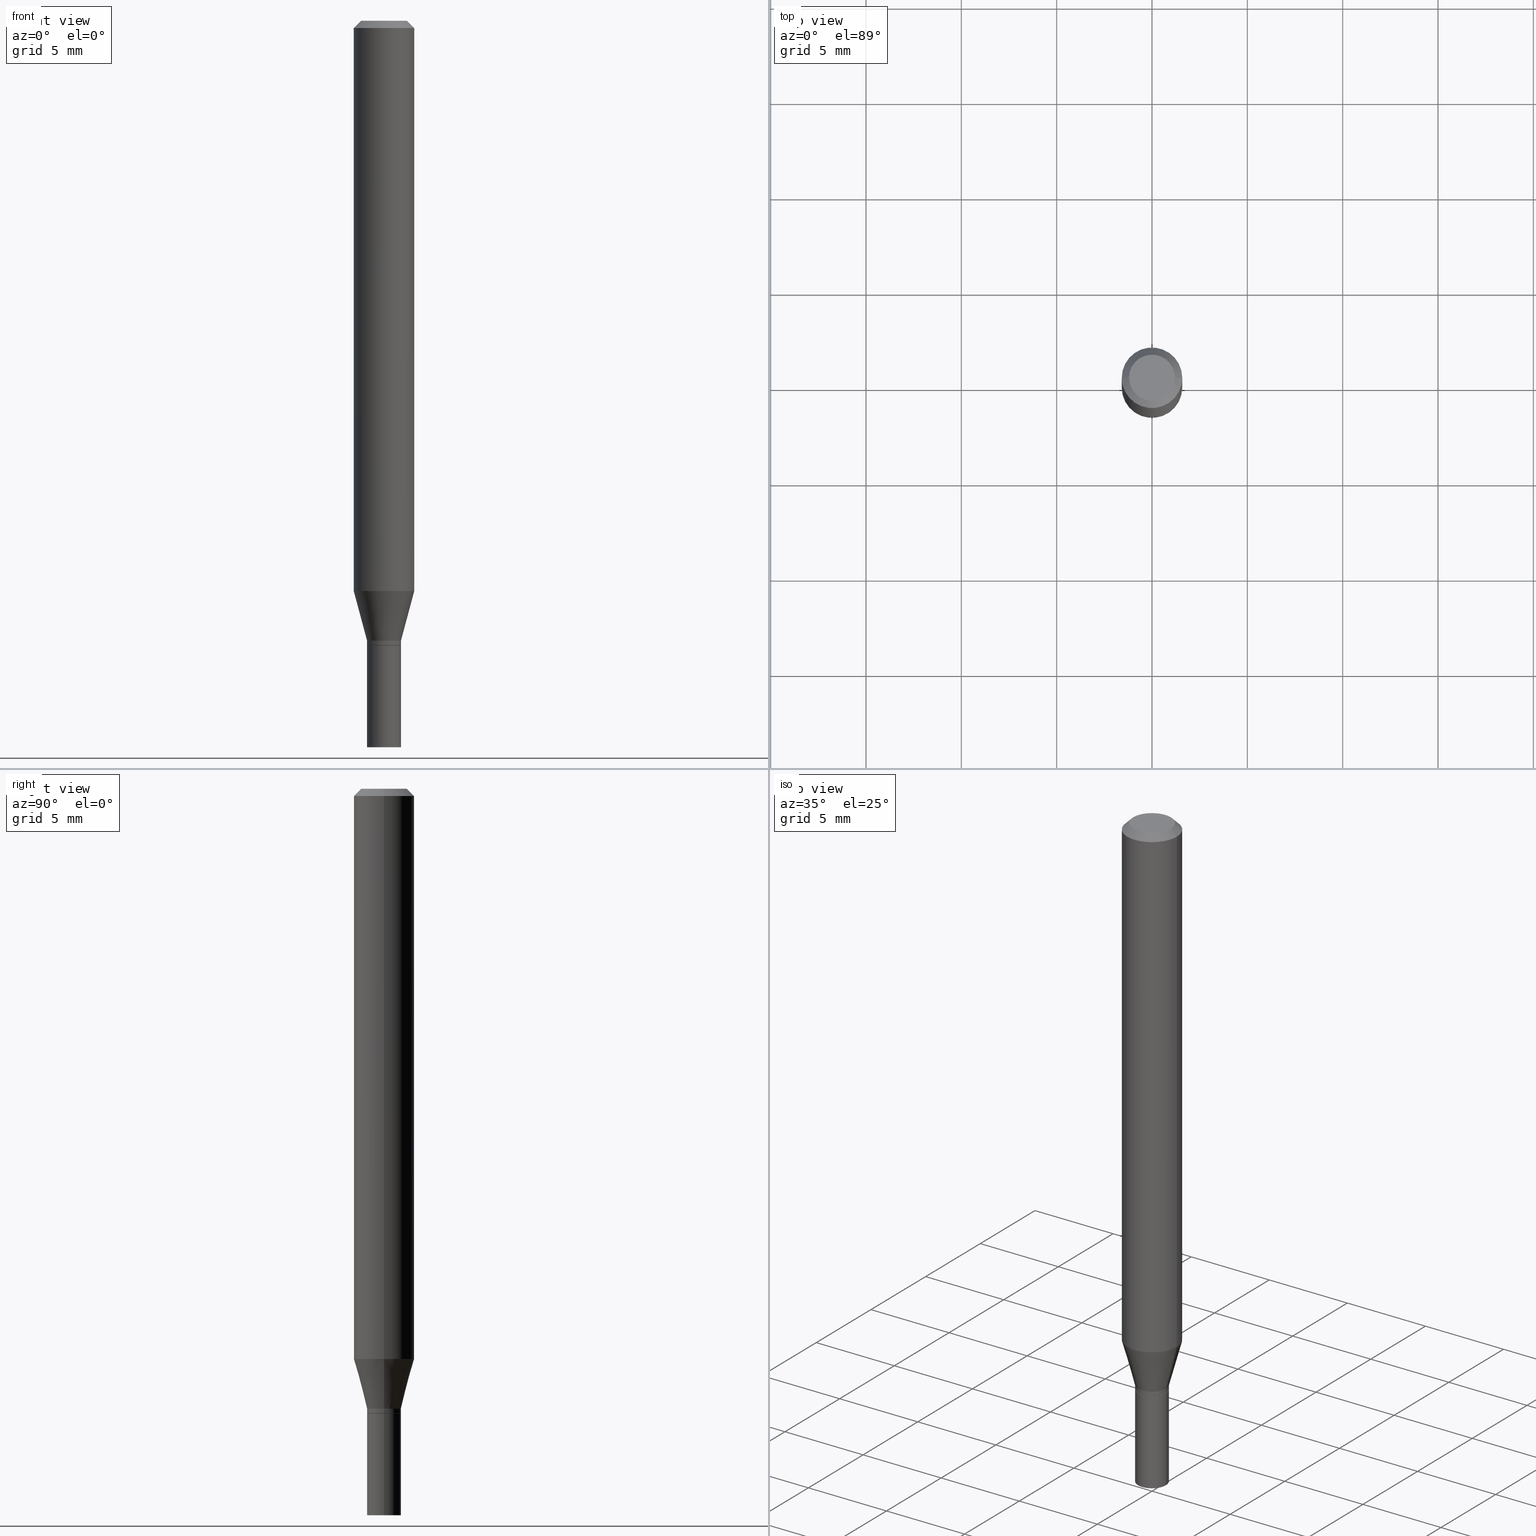
[diagram: canonical four-view strip — front | top / right | iso, engineering-drawing reading convention]
A machine part, canonical four-view strip (front | top / right | iso — engineering-drawing reading convention). The complete STEP part file that produces these views, byte-faithful:
ISO-10303-21;
HEADER;
FILE_DESCRIPTION (( 'STEP AP203' ),
    '1' );
FILE_NAME ('00501.STEP',
    '2024-03-19T21:25:00',
    ( '' ),
    ( '' ),
    'SwSTEP 2.0',
    'SolidWorks 2023',
    '' );
FILE_SCHEMA (( 'CONFIG_CONTROL_DESIGN' ));
ENDSEC;

DATA;
#1 = ORIENTED_EDGE ( 'NONE', *, *, #104, .F. ) ;
#2 = EDGE_CURVE ( 'NONE', #220, #65, #145, .T. ) ;
#3 = CARTESIAN_POINT ( 'NONE',  ( 3.316907271900976096E-16, 0.04749999999999999362, -4.235459955654645622E-17 ) ) ;
#4 = DIRECTION ( 'NONE',  ( -2.445468806185136877E-29, 3.491481338843145188E-15, 1.000000000000000000 ) ) ;
#5 = ADVANCED_BREP_SHAPE_REPRESENTATION ( '00501', ( #151, #303, #49 ), #241 ) ;
#6 = DATE_AND_TIME ( #371, #117 ) ;
#7 = CONICAL_SURFACE ( 'NONE', #195, 0.03499999999999992700, 0.2617993877991499629 ) ;
#8 = AXIS2_PLACEMENT_3D ( 'NONE', #174, #318, #286 ) ;
#9 = ADVANCED_FACE ( 'NONE', ( #90 ), #348, .T. ) ;
#10 = APPLICATION_PROTOCOL_DEFINITION ( 'international standard', 'config_control_design', 1994, #448 ) ;
#11 = APPROVAL_DATE_TIME ( #154, #113 ) ;
#12 = APPROVAL_DATE_TIME ( #334, #193 ) ;
#13 = ADVANCED_FACE ( 'NONE', ( #23 ), #386, .T. ) ;
#14 = LOCAL_TIME ( 17, 25, 0.000000000000000000, #123 ) ;
#15 = DIRECTION ( 'NONE',  ( 0.000000000000000000, 0.000000000000000000, 1.000000000000000000 ) ) ;
#16 = ADVANCED_FACE ( 'NONE', ( #235 ), #170, .T. ) ;
#17 = FACE_OUTER_BOUND ( 'NONE', #256, .T. ) ;
#18 = FACE_OUTER_BOUND ( 'NONE', #310, .T. ) ;
#19 = DIRECTION ( 'NONE',  ( -2.445468806185136597E-29, 3.491481338843145583E-15, 1.000000000000000000 ) ) ;
#20 = CLOSED_SHELL ( 'NONE', ( #9, #38, #162, #342, #57, #346, #13, #400, #201, #227, #16, #269 ) ) ;
#21 = LOCAL_TIME ( 17, 25, 0.000000000000000000, #84 ) ;
#22 = CARTESIAN_POINT ( 'NONE',  ( 0.03499999999999992700, -2.444036937190188320E-16, 1.706661871528573954E-30 ) ) ;
#23 = FACE_OUTER_BOUND ( 'NONE', #283, .T. ) ;
#24 = DIRECTION ( 'NONE',  ( 1.000000000000000000, -6.982962677686264344E-15, 0.000000000000000000 ) ) ;
#25 = EDGE_LOOP ( 'NONE', ( #168, #410, #273, #58 ) ) ;
#26 = DIRECTION ( 'NONE',  ( -2.445468806185136597E-29, 3.491481338843145583E-15, 1.000000000000000000 ) ) ;
#27 =( NAMED_UNIT ( * ) PLANE_ANGLE_UNIT ( ) SI_UNIT ( $, .RADIAN. ) );
#28 = AXIS2_PLACEMENT_3D ( 'NONE', #450, #93, #237 ) ;
#29 = AXIS2_PLACEMENT_3D ( 'NONE', #329, #37, #254 ) ;
#30 = VERTEX_POINT ( 'NONE', #199 ) ;
#31 = DIRECTION ( 'NONE',  ( 1.000000000000000000, -6.982962677686276966E-15, 0.000000000000000000 ) ) ;
#32 = CARTESIAN_POINT ( 'NONE',  ( -0.06250000000000000000, 4.440892098500626162E-16, -3.074334431409316114E-30 ) ) ;
#33 = VERTEX_POINT ( 'NONE', #96 ) ;
#34 = EDGE_LOOP ( 'NONE', ( #383, #95 ) ) ;
#35 = DIRECTION ( 'NONE',  ( -2.445468806185136597E-29, 3.491481338843145583E-15, 1.000000000000000000 ) ) ;
#36 = CC_DESIGN_DATE_AND_TIME_ASSIGNMENT ( #6, #299, ( #285 ) ) ;
#37 = DIRECTION ( 'NONE',  ( -2.445468806185136597E-29, 3.491481338843145583E-15, 1.000000000000000000 ) ) ;
#38 = ADVANCED_FACE ( 'NONE', ( #275 ), #128, .T. ) ;
#39 = CIRCLE ( 'NONE', #48, 0.06250000000000000000 ) ;
#40 = CC_DESIGN_APPROVAL ( #113, ( #177 ) ) ;
#41 = PLANE ( 'NONE',  #300 ) ;
#42 = CARTESIAN_POINT ( 'NONE',  ( -0.06250000000000000000, -3.666671295737530361E-15, -1.177368602791855734 ) ) ;
#43 = EDGE_CURVE ( 'NONE', #375, #429, #198, .T. ) ;
#44 = FACE_OUTER_BOUND ( 'NONE', #291, .T. ) ;
#45 = ORIENTED_EDGE ( 'NONE', *, *, #219, .T. ) ;
#46 = ADVANCED_FACE ( 'NONE', ( #240 ), #308, .F. ) ;
#47 = PERSON_AND_ORGANIZATION ( #335, #230 ) ;
#48 = AXIS2_PLACEMENT_3D ( 'NONE', #70, #176, #180 ) ;
#49 = AXIS2_PLACEMENT_3D ( 'NONE', #231, #15, #328 ) ;
#50 = CARTESIAN_POINT ( 'NONE',  ( 3.668203209277704895E-29, -5.237222008264718177E-15, -1.500000000000000222 ) ) ;
#51 = CARTESIAN_POINT ( 'NONE',  ( -0.03500000000000000333, -4.621926510170152942E-15, -1.500000000000000222 ) ) ;
#52 = DIRECTION ( 'NONE',  ( -2.445468806185136597E-29, 3.491481338843145583E-15, 1.000000000000000000 ) ) ;
#53 = CIRCLE ( 'NONE', #82, 0.03500000000000000333 ) ;
#54 = AXIS2_PLACEMENT_3D ( 'NONE', #360, #143, #357 ) ;
#55 = ORIENTED_EDGE ( 'NONE', *, *, #233, .F. ) ;
#56 = FACE_OUTER_BOUND ( 'NONE', #173, .T. ) ;
#57 = ADVANCED_FACE ( 'NONE', ( #306 ), #7, .T. ) ;
#58 = ORIENTED_EDGE ( 'NONE', *, *, #89, .F. ) ;
#59 = CYLINDRICAL_SURFACE ( 'NONE', #464, 0.03500000000000000333 ) ;
#60 = DIRECTION ( 'NONE',  ( 1.000000000000000000, -6.982962677686264344E-15, 0.000000000000000000 ) ) ;
#61 = ORIENTED_EDGE ( 'NONE', *, *, #372, .T. ) ;
#62 = CARTESIAN_POINT ( 'NONE',  ( 2.879218191509262057E-29, -4.110760505587592188E-15, -1.177368602791855734 ) ) ;
#63 = DIRECTION ( 'NONE',  ( -0.2588190451025212391, 5.211531920934549464E-15, 0.9659258262890679791 ) ) ;
#64 = AXIS2_PLACEMENT_3D ( 'NONE', #236, #204, #442 ) ;
#65 = VERTEX_POINT ( 'NONE', #407 ) ;
#66 = CARTESIAN_POINT ( 'NONE',  ( 0.03450000000000000289, -4.744923139487834449E-15, -1.290000000000000258 ) ) ;
#67 = ORIENTED_EDGE ( 'NONE', *, *, #89, .T. ) ;
#68 = PLANE ( 'NONE',  #146 ) ;
#69 = DIRECTION ( 'NONE',  ( -2.445468806185136597E-29, 3.491481338843145583E-15, 1.000000000000000000 ) ) ;
#70 = CARTESIAN_POINT ( 'NONE',  ( 3.668203209277705088E-31, -5.237222008264718399E-17, -0.01499999999999999944 ) ) ;
#71 = CLOSED_SHELL ( 'NONE', ( #81, #46, #258, #141 ) ) ;
#72 = ORIENTED_EDGE ( 'NONE', *, *, #301, .T. ) ;
#73 = VECTOR ( 'NONE', #63, 39.37007874015748854 ) ;
#74 = CARTESIAN_POINT ( 'NONE',  ( 0.000000000000000000, 0.000000000000000000, 0.000000000000000000 ) ) ;
#75 = APPLICATION_CONTEXT ( 'configuration controlled 3d designs of mechanical parts and assemblies' ) ;
#76 = EDGE_LOOP ( 'NONE', ( #288, #72, #163, #416 ) ) ;
#77 = CARTESIAN_POINT ( 'NONE',  ( 3.668203209277705088E-31, -5.237222008264718399E-17, -0.01499999999999999944 ) ) ;
#78 = CALENDAR_DATE ( 2024, 19, 3 ) ;
#79 = PERSON_AND_ORGANIZATION_ROLE ( 'creator' ) ;
#80 = VERTEX_POINT ( 'NONE', #344 ) ;
#81 = ADVANCED_FACE ( 'NONE', ( #56 ), #59, .T. ) ;
#82 = AXIS2_PLACEMENT_3D ( 'NONE', #50, #19, #31 ) ;
#83 = CIRCLE ( 'NONE', #212, 0.04749999999999999362 ) ;
#84 = COORDINATED_UNIVERSAL_TIME_OFFSET ( 5, 0, .BEHIND. ) ;
#85 = EDGE_CURVE ( 'NONE', #403, #253, #330, .T. ) ;
#86 = DATE_AND_TIME ( #266, #365 ) ;
#87 = PRODUCT ( '00501', '00501', '', ( #373 ) ) ;
#88 = CIRCLE ( 'NONE', #465, 0.03499999999999992700 ) ;
#89 = EDGE_CURVE ( 'NONE', #403, #423, #169, .T. ) ;
#90 = FACE_OUTER_BOUND ( 'NONE', #296, .T. ) ;
#91 = DIRECTION ( 'NONE',  ( -2.445468806185136597E-29, 3.491481338843145583E-15, 1.000000000000000000 ) ) ;
#92 = CC_DESIGN_PERSON_AND_ORGANIZATION_ASSIGNMENT ( #126, #268, ( #94 ) ) ;
#93 = DIRECTION ( 'NONE',  ( -2.445468806185136597E-29, 3.491481338843145583E-15, 1.000000000000000000 ) ) ;
#94 = SECURITY_CLASSIFICATION ( '', '', #440 ) ;
#95 = ORIENTED_EDGE ( 'NONE', *, *, #390, .T. ) ;
#96 = CARTESIAN_POINT ( 'NONE',  ( 0.03499999999999992700, -4.713499807438245807E-15, -1.280000000000000027 ) ) ;
#97 = CARTESIAN_POINT ( 'NONE',  ( 0.03450000000000000289, -4.744923139487834449E-15, -1.290000000000000258 ) ) ;
#98 = ORIENTED_EDGE ( 'NONE', *, *, #233, .T. ) ;
#99 = DIRECTION ( 'NONE',  ( 1.000000000000000000, -6.982962677686266711E-15, 4.876176775795935793E-29 ) ) ;
#100 = DIRECTION ( 'NONE',  ( -2.445468806185136597E-29, 3.491481338843145583E-15, 1.000000000000000000 ) ) ;
#101 = DIRECTION ( 'NONE',  ( -2.438088387897960049E-29, 3.491481338843145188E-15, 1.000000000000000000 ) ) ;
#102 = AXIS2_PLACEMENT_3D ( 'NONE', #385, #338, #175 ) ;
#103 = ORIENTED_EDGE ( 'NONE', *, *, #134, .T. ) ;
#104 = EDGE_CURVE ( 'NONE', #65, #33, #278, .T. ) ;
#105 = LINE ( 'NONE', #66, #405 ) ;
#106 = DIRECTION ( 'NONE',  ( -2.445468806185136877E-29, 3.491481338843145188E-15, 1.000000000000000000 ) ) ;
#107 = EDGE_LOOP ( 'NONE', ( #246, #45, #122, #131 ) ) ;
#108 = CARTESIAN_POINT ( 'NONE',  ( 0.03499999999999992700, -4.713499807438245807E-15, -1.280000000000000027 ) ) ;
#109 = ORIENTED_EDGE ( 'NONE', *, *, #264, .F. ) ;
#110 = FACE_OUTER_BOUND ( 'NONE', #356, .T. ) ;
#111 = UNCERTAINTY_MEASURE_WITH_UNIT (LENGTH_MEASURE( 1.000000000000000082E-05 ), #144, 'distance_accuracy_value', 'NONE');
#112 = DIRECTION ( 'NONE',  ( -2.445468806185136597E-29, 3.491481338843145583E-15, 1.000000000000000000 ) ) ;
#113 = APPROVAL ( #186, 'UNSPECIFIED' ) ;
#114 = EDGE_CURVE ( 'NONE', #389, #30, #53, .T. ) ;
#115 = ORIENTED_EDGE ( 'NONE', *, *, #85, .F. ) ;
#116 = AXIS2_PLACEMENT_3D ( 'NONE', #77, #466, #399 ) ;
#117 = LOCAL_TIME ( 17, 25, 0.000000000000000000, #270 ) ;
#118 = DIRECTION ( 'NONE',  ( 1.000000000000000000, -6.982962677686266711E-15, 0.000000000000000000 ) ) ;
#119 = APPROVAL_DATE_TIME ( #226, #424 ) ;
#120 = APPROVAL_ROLE ( '' ) ;
#121 = EDGE_CURVE ( 'NONE', #253, #419, #447, .T. ) ;
#122 = ORIENTED_EDGE ( 'NONE', *, *, #398, .F. ) ;
#123 = COORDINATED_UNIVERSAL_TIME_OFFSET ( 5, 0, .BEHIND. ) ;
#124 = EDGE_CURVE ( 'NONE', #179, #265, #125, .T. ) ;
#125 = CIRCLE ( 'NONE', #452, 0.06250000000000000000 ) ;
#126 = PERSON_AND_ORGANIZATION ( #335, #230 ) ;
#127 = PERSON_AND_ORGANIZATION ( #335, #230 ) ;
#128 = CONICAL_SURFACE ( 'NONE', #222, 0.03450000000000000289, 0.7853981633974739252 ) ;
#129 = VECTOR ( 'NONE', #106, 39.37007874015748143 ) ;
#130 = DIRECTION ( 'NONE',  ( 1.000000000000000000, -6.982962677686267499E-15, 4.852736867747366768E-29 ) ) ;
#131 = ORIENTED_EDGE ( 'NONE', *, *, #274, .F. ) ;
#132 = DIRECTION ( 'NONE',  ( 1.000000000000000000, -6.982962677686276966E-15, 0.000000000000000000 ) ) ;
#133 = DIRECTION ( 'NONE',  ( -2.445468806185136597E-29, 3.491481338843145583E-15, 1.000000000000000000 ) ) ;
#134 = EDGE_CURVE ( 'NONE', #389, #429, #171, .T. ) ;
#135 = DIRECTION ( 'NONE',  ( -2.445468806185136597E-29, 3.491481338843145583E-15, 1.000000000000000000 ) ) ;
#136 = CC_DESIGN_APPROVAL ( #424, ( #94 ) ) ;
#137 = DIRECTION ( 'NONE',  ( 0.7071067811865416886, -7.319954787623233957E-15, -0.7071067811865531239 ) ) ;
#138 = CARTESIAN_POINT ( 'NONE',  ( 3.668203209277705088E-31, -5.237222008264718399E-17, -0.01499999999999999944 ) ) ;
#139 = CARTESIAN_POINT ( 'NONE',  ( 3.154654759978826367E-29, -4.504010927107658279E-15, -1.290000000000000258 ) ) ;
#140 = LENGTH_MEASURE_WITH_UNIT ( LENGTH_MEASURE( 0.02539999999999999897 ), #207 );
#141 = ADVANCED_FACE ( 'NONE', ( #409 ), #380, .F. ) ;
#142 = ORIENTED_EDGE ( 'NONE', *, *, #428, .F. ) ;
#143 = DIRECTION ( 'NONE',  ( -2.445468806185136597E-29, 3.491481338843145583E-15, 1.000000000000000000 ) ) ;
#144 =( CONVERSION_BASED_UNIT ( 'INCH', #140 ) LENGTH_UNIT ( ) NAMED_UNIT ( #333 ) );
#145 = CIRCLE ( 'NONE', #352, 0.03499999999999992700 ) ;
#146 = AXIS2_PLACEMENT_3D ( 'NONE', #3, #148, #395 ) ;
#147 = ORIENTED_EDGE ( 'NONE', *, *, #114, .F. ) ;
#148 = DIRECTION ( 'NONE',  ( 2.438088387897960049E-29, -3.491481338843145188E-15, -1.000000000000000000 ) ) ;
#149 = ORIENTED_EDGE ( 'NONE', *, *, #456, .T. ) ;
#150 = LINE ( 'NONE', #363, #453 ) ;
#151 = MANIFOLD_SOLID_BREP ( 'Body-Move/Copy2[1]', #71 ) ;
#152 = EDGE_LOOP ( 'NONE', ( #413, #350, #343, #361 ) ) ;
#153 = DIRECTION ( 'NONE',  ( -2.445468806185136597E-29, 3.491481338843145583E-15, 1.000000000000000000 ) ) ;
#154 = DATE_AND_TIME ( #78, #14 ) ;
#155 = ORIENTED_EDGE ( 'NONE', *, *, #428, .T. ) ;
#156 = CONICAL_SURFACE ( 'NONE', #160, 0.06250000000000000000, 0.7853981633974401744 ) ;
#157 = PRODUCT_RELATED_PRODUCT_CATEGORY ( 'detail', '', ( #87 ) ) ;
#158 = PERSON_AND_ORGANIZATION ( #335, #230 ) ;
#159 = DATE_TIME_ROLE ( 'classification_date' ) ;
#160 = AXIS2_PLACEMENT_3D ( 'NONE', #138, #314, #387 ) ;
#161 = CALENDAR_DATE ( 2024, 19, 3 ) ;
#162 = ADVANCED_FACE ( 'NONE', ( #325 ), #298, .T. ) ;
#163 = ORIENTED_EDGE ( 'NONE', *, *, #274, .T. ) ;
#164 = CARTESIAN_POINT ( 'NONE',  ( 3.154654759978826367E-29, -4.504010927107658279E-15, -1.290000000000000258 ) ) ;
#165 = CARTESIAN_POINT ( 'NONE',  ( 0.000000000000000000, 0.000000000000000000, 0.000000000000000000 ) ) ;
#166 = ORIENTED_EDGE ( 'NONE', *, *, #264, .T. ) ;
#167 = CARTESIAN_POINT ( 'NONE',  ( -6.039856226162563845E-45, 8.623313963198305035E-31, 2.469815280770058928E-16 ) ) ;
#168 = ORIENTED_EDGE ( 'NONE', *, *, #194, .F. ) ;
#169 = LINE ( 'NONE', #455, #187 ) ;
#170 = CONICAL_SURFACE ( 'NONE', #28, 0.03450000000000000289, 0.7853981633974739252 ) ;
#171 = LINE ( 'NONE', #316, #381 ) ;
#172 = EDGE_CURVE ( 'NONE', #419, #423, #39, .T. ) ;
#173 = EDGE_LOOP ( 'NONE', ( #260, #103, #262, #238 ) ) ;
#174 = CARTESIAN_POINT ( 'NONE',  ( 3.154654759978826367E-29, -4.504010927107658279E-15, -1.290000000000000258 ) ) ;
#175 = DIRECTION ( 'NONE',  ( 1.000000000000000000, -6.982962677686276966E-15, 0.000000000000000000 ) ) ;
#176 = DIRECTION ( 'NONE',  ( -2.445468806185136597E-29, 3.491481338843145583E-15, 1.000000000000000000 ) ) ;
#177 = PRODUCT_DEFINITION_FORMATION_WITH_SPECIFIED_SOURCE ( 'ANY', '', #87, .NOT_KNOWN. ) ;
#178 = CC_DESIGN_PERSON_AND_ORGANIZATION_ASSIGNMENT ( #228, #336, ( #87 ) ) ;
#179 = VERTEX_POINT ( 'NONE', #42 ) ;
#180 = DIRECTION ( 'NONE',  ( 1.000000000000000000, -6.982962677686266711E-15, 0.000000000000000000 ) ) ;
#181 = DESIGN_CONTEXT ( 'detailed design', #75, 'design' ) ;
#182 = ORIENTED_EDGE ( 'NONE', *, *, #456, .F. ) ;
#183 = FACE_OUTER_BOUND ( 'NONE', #446, .T. ) ;
#184 = PERSON_AND_ORGANIZATION_ROLE ( 'creator' ) ;
#185 = DIRECTION ( 'NONE',  ( 0.7071067811865656694, -2.468850131082446387E-15, 0.7071067811865294761 ) ) ;
#186 = APPROVAL_STATUS ( 'not_yet_approved' ) ;
#187 = VECTOR ( 'NONE', #378, 39.37007874015748854 ) ;
#188 = ORIENTED_EDGE ( 'NONE', *, *, #85, .T. ) ;
#189 = AXIS2_PLACEMENT_3D ( 'NONE', #255, #69, #282 ) ;
#190 = EDGE_CURVE ( 'NONE', #265, #179, #362, .T. ) ;
#191 = APPLICATION_PROTOCOL_DEFINITION ( 'international standard', 'config_control_design', 1994, #75 ) ;
#192 = APPROVAL_STATUS ( 'not_yet_approved' ) ;
#193 = APPROVAL ( #192, 'UNSPECIFIED' ) ;
#194 = EDGE_CURVE ( 'NONE', #253, #403, #83, .T. ) ;
#195 = AXIS2_PLACEMENT_3D ( 'NONE', #341, #135, #382 ) ;
#196 = CC_DESIGN_SECURITY_CLASSIFICATION ( #94, ( #177 ) ) ;
#197 = DIRECTION ( 'NONE',  ( 1.000000000000000000, -6.982962677686266711E-15, 4.876176775795935793E-29 ) ) ;
#198 = CIRCLE ( 'NONE', #211, 0.03500000000000000333 ) ;
#199 = CARTESIAN_POINT ( 'NONE',  ( 0.03500000000000000333, -5.481625701983738143E-15, -1.500000000000000222 ) ) ;
#200 = VECTOR ( 'NONE', #225, 39.37007874015748854 ) ;
#201 = ADVANCED_FACE ( 'NONE', ( #183 ), #68, .F. ) ;
#202 = ORIENTED_EDGE ( 'NONE', *, *, #124, .F. ) ;
#203 = DIRECTION ( 'NONE',  ( -2.445468806185136597E-29, 3.491481338843145583E-15, 1.000000000000000000 ) ) ;
#204 = DIRECTION ( 'NONE',  ( -2.445468806185136597E-29, 3.491481338843145583E-15, 1.000000000000000000 ) ) ;
#205 = ORIENTED_EDGE ( 'NONE', *, *, #104, .T. ) ;
#206 = CARTESIAN_POINT ( 'NONE',  ( 0.000000000000000000, 0.000000000000000000, 0.000000000000000000 ) ) ;
#207 =( LENGTH_UNIT ( ) NAMED_UNIT ( * ) SI_UNIT ( $, .METRE. ) );
#208 = ORIENTED_EDGE ( 'NONE', *, *, #121, .F. ) ;
#209 = DIRECTION ( 'NONE',  ( 1.000000000000000000, -6.982962677686270655E-15, 0.000000000000000000 ) ) ;
#210 = LINE ( 'NONE', #462, #252 ) ;
#211 = AXIS2_PLACEMENT_3D ( 'NONE', #354, #272, #132 ) ;
#212 = AXIS2_PLACEMENT_3D ( 'NONE', #425, #261, #293 ) ;
#213 = DIRECTION ( 'NONE',  ( 1.000000000000000000, -6.982962677686265922E-15, 4.876176775795935793E-29 ) ) ;
#214 = FACE_OUTER_BOUND ( 'NONE', #317, .T. ) ;
#215 = ORIENTED_EDGE ( 'NONE', *, *, #372, .F. ) ;
#216 = CYLINDRICAL_SURFACE ( 'NONE', #54, 0.03499999999999992700 ) ;
#217 = CC_DESIGN_PERSON_AND_ORGANIZATION_ASSIGNMENT ( #47, #302, ( #177 ) ) ;
#218 = CARTESIAN_POINT ( 'NONE',  ( -0.03499999999999992700, -4.220406156203192133E-15, -1.280000000000000027 ) ) ;
#219 = EDGE_CURVE ( 'NONE', #80, #220, #150, .T. ) ;
#220 = VERTEX_POINT ( 'NONE', #420 ) ;
#221 = CARTESIAN_POINT ( 'NONE',  ( 2.879218191509262057E-29, -4.110760505587592188E-15, -1.177368602791855734 ) ) ;
#222 = AXIS2_PLACEMENT_3D ( 'NONE', #164, #411, #417 ) ;
#223 = CIRCLE ( 'NONE', #64, 0.03500000000000000333 ) ;
#224 = DIRECTION ( 'NONE',  ( 1.000000000000000000, -6.982962677686265922E-15, 4.876176775795936353E-29 ) ) ;
#225 = DIRECTION ( 'NONE',  ( 0.2588190451025212391, 1.565188264969622362E-15, 0.9659258262890679791 ) ) ;
#226 = DATE_AND_TIME ( #437, #337 ) ;
#227 = ADVANCED_FACE ( 'NONE', ( #110 ), #41, .F. ) ;
#228 = PERSON_AND_ORGANIZATION ( #335, #230 ) ;
#229 = AXIS2_PLACEMENT_3D ( 'NONE', #458, #307, #384 ) ;
#230 = ORGANIZATION ( 'UNSPECIFIED', 'UNSPECIFIED', '' ) ;
#231 = CARTESIAN_POINT ( 'NONE',  ( 0.000000000000000000, 0.000000000000000000, 0.000000000000000000 ) ) ;
#232 = APPROVAL_ROLE ( '' ) ;
#233 = EDGE_CURVE ( 'NONE', #33, #265, #321, .T. ) ;
#234 = AXIS2_PLACEMENT_3D ( 'NONE', #221, #35, #290 ) ;
#235 = FACE_OUTER_BOUND ( 'NONE', #76, .T. ) ;
#236 = CARTESIAN_POINT ( 'NONE',  ( 3.668203209277704895E-29, -5.237222008264718177E-15, -1.500000000000000222 ) ) ;
#237 = DIRECTION ( 'NONE',  ( 1.000000000000000000, -6.982962677686261977E-15, 0.000000000000000000 ) ) ;
#238 = ORIENTED_EDGE ( 'NONE', *, *, #245, .F. ) ;
#239 = AXIS2_PLACEMENT_3D ( 'NONE', #427, #366, #284 ) ;
#240 = FACE_OUTER_BOUND ( 'NONE', #426, .T. ) ;
#241 =( GEOMETRIC_REPRESENTATION_CONTEXT ( 3 ) GLOBAL_UNCERTAINTY_ASSIGNED_CONTEXT ( ( #111 ) ) GLOBAL_UNIT_ASSIGNED_CONTEXT ( ( #144, #27, #287 ) ) REPRESENTATION_CONTEXT ( 'NONE', 'WORKASPACE' ) );
#242 = EDGE_LOOP ( 'NONE', ( #276, #155, #320, #55 ) ) ;
#243 = DIRECTION ( 'NONE',  ( 1.000000000000000000, -6.982962677686264344E-15, 0.000000000000000000 ) ) ;
#244 = CC_DESIGN_DATE_AND_TIME_ASSIGNMENT ( #86, #159, ( #94 ) ) ;
#245 = EDGE_CURVE ( 'NONE', #30, #375, #402, .T. ) ;
#246 = ORIENTED_EDGE ( 'NONE', *, *, #311, .T. ) ;
#247 = DIRECTION ( 'NONE',  ( -2.445468806185136597E-29, 3.491481338843145583E-15, 1.000000000000000000 ) ) ;
#248 = CARTESIAN_POINT ( 'NONE',  ( -0.06250000000000000000, -1.637477152985057215E-15, -0.01499999999999999944 ) ) ;
#249 = ORIENTED_EDGE ( 'NONE', *, *, #124, .T. ) ;
#250 = DIRECTION ( 'NONE',  ( -2.445468806185136597E-29, 3.491481338843145583E-15, 1.000000000000000000 ) ) ;
#251 = LINE ( 'NONE', #218, #73 ) ;
#252 = VECTOR ( 'NONE', #459, 39.37007874015748143 ) ;
#253 = VERTEX_POINT ( 'NONE', #397 ) ;
#254 = DIRECTION ( 'NONE',  ( 1.000000000000000000, -6.982962677686264344E-15, 0.000000000000000000 ) ) ;
#255 = CARTESIAN_POINT ( 'NONE',  ( 3.130200071916974821E-29, -4.469096113719226630E-15, -1.280000000000000027 ) ) ;
#256 = EDGE_LOOP ( 'NONE', ( #324, #401, #280, #215 ) ) ;
#257 = CYLINDRICAL_SURFACE ( 'NONE', #267, 0.03500000000000000333 ) ;
#258 = ADVANCED_FACE ( 'NONE', ( #259 ), #257, .T. ) ;
#259 = FACE_OUTER_BOUND ( 'NONE', #152, .T. ) ;
#260 = ORIENTED_EDGE ( 'NONE', *, *, #358, .T. ) ;
#261 = DIRECTION ( 'NONE',  ( -2.445468806185136597E-29, 3.491481338843145583E-15, 1.000000000000000000 ) ) ;
#262 = ORIENTED_EDGE ( 'NONE', *, *, #43, .F. ) ;
#263 = PERSON_AND_ORGANIZATION ( #335, #230 ) ;
#264 = EDGE_CURVE ( 'NONE', #423, #419, #406, .T. ) ;
#265 = VERTEX_POINT ( 'NONE', #367 ) ;
#266 = CALENDAR_DATE ( 2024, 19, 3 ) ;
#267 = AXIS2_PLACEMENT_3D ( 'NONE', #74, #153, #224 ) ;
#268 = PERSON_AND_ORGANIZATION_ROLE ( 'classification_officer' ) ;
#269 = ADVANCED_FACE ( 'NONE', ( #44 ), #216, .T. ) ;
#270 = COORDINATED_UNIVERSAL_TIME_OFFSET ( 5, 0, .BEHIND. ) ;
#271 = AXIS2_PLACEMENT_3D ( 'NONE', #449, #454, #309 ) ;
#272 = DIRECTION ( 'NONE',  ( -2.445468806185136597E-29, 3.491481338843145583E-15, 1.000000000000000000 ) ) ;
#273 = ORIENTED_EDGE ( 'NONE', *, *, #172, .T. ) ;
#274 = EDGE_CURVE ( 'NONE', #379, #65, #105, .T. ) ;
#275 = FACE_OUTER_BOUND ( 'NONE', #107, .T. ) ;
#276 = ORIENTED_EDGE ( 'NONE', *, *, #289, .T. ) ;
#277 = CYLINDRICAL_SURFACE ( 'NONE', #271, 0.06250000000000000000 ) ;
#278 = LINE ( 'NONE', #22, #438 ) ;
#279 = APPROVAL_PERSON_ORGANIZATION ( #127, #424, #232 ) ;
#280 = ORIENTED_EDGE ( 'NONE', *, *, #172, .F. ) ;
#281 = CARTESIAN_POINT ( 'NONE',  ( 0.000000000000000000, 0.000000000000000000, 0.000000000000000000 ) ) ;
#282 = DIRECTION ( 'NONE',  ( 1.000000000000000000, -6.982962677686264344E-15, 0.000000000000000000 ) ) ;
#283 = EDGE_LOOP ( 'NONE', ( #332, #249, #61, #109 ) ) ;
#284 = DIRECTION ( 'NONE',  ( -1.000000000000000000, 6.982962677686265922E-15, -4.876176775795935793E-29 ) ) ;
#285 = PRODUCT_DEFINITION ( 'UNKNOWN', '', #177, #181 ) ;
#286 = DIRECTION ( 'NONE',  ( 1.000000000000000000, -6.982962677686261977E-15, 0.000000000000000000 ) ) ;
#287 =( NAMED_UNIT ( * ) SI_UNIT ( $, .STERADIAN. ) SOLID_ANGLE_UNIT ( ) );
#288 = ORIENTED_EDGE ( 'NONE', *, *, #219, .F. ) ;
#289 = EDGE_CURVE ( 'NONE', #33, #433, #353, .T. ) ;
#290 = DIRECTION ( 'NONE',  ( 1.000000000000000000, -6.982962677686270655E-15, 0.000000000000000000 ) ) ;
#291 = EDGE_LOOP ( 'NONE', ( #351, #347, #205, #182 ) ) ;
#292 = DIRECTION ( 'NONE',  ( -0.7071067811865656694, 7.493145998870420424E-15, 0.7071067811865294761 ) ) ;
#293 = DIRECTION ( 'NONE',  ( 1.000000000000000000, -6.982962677686267499E-15, 4.852736867747366768E-29 ) ) ;
#294 = AXIS2_PLACEMENT_3D ( 'NONE', #139, #250, #393 ) ;
#295 = ORIENTED_EDGE ( 'NONE', *, *, #311, .F. ) ;
#296 = EDGE_LOOP ( 'NONE', ( #460, #359, #436, #1 ) ) ;
#297 = APPROVAL_STATUS ( 'not_yet_approved' ) ;
#298 = CONICAL_SURFACE ( 'NONE', #116, 0.06250000000000000000, 0.7853981633974401744 ) ;
#299 = DATE_TIME_ROLE ( 'creation_date' ) ;
#300 = AXIS2_PLACEMENT_3D ( 'NONE', #421, #101, #213 ) ;
#301 = EDGE_CURVE ( 'NONE', #80, #379, #323, .T. ) ;
#302 = PERSON_AND_ORGANIZATION_ROLE ( 'design_supplier' ) ;
#303 = MANIFOLD_SOLID_BREP ( 'Body-Move/Copy2[2]', #20 ) ;
#304 = CARTESIAN_POINT ( 'NONE',  ( 3.130200071916974821E-29, -4.469096113719226630E-15, -1.280000000000000027 ) ) ;
#305 = AXIS2_PLACEMENT_3D ( 'NONE', #327, #430, #118 ) ;
#306 = FACE_OUTER_BOUND ( 'NONE', #242, .T. ) ;
#307 = DIRECTION ( 'NONE',  ( -2.438088387897960049E-29, 3.491481338843145188E-15, 1.000000000000000000 ) ) ;
#308 = PLANE ( 'NONE',  #229 ) ;
#309 = DIRECTION ( 'NONE',  ( 1.000000000000000000, -6.982962677686266711E-15, 4.876176775795935793E-29 ) ) ;
#310 = EDGE_LOOP ( 'NONE', ( #142, #149, #98, #202 ) ) ;
#311 = EDGE_CURVE ( 'NONE', #379, #80, #364, .T. ) ;
#312 = APPROVAL_PERSON_ORGANIZATION ( #263, #193, #368 ) ;
#313 = DIRECTION ( 'NONE',  ( 1.000000000000000000, -6.982962677686265922E-15, 4.876176775795936353E-29 ) ) ;
#314 = DIRECTION ( 'NONE',  ( 2.445468806185136597E-29, -3.491481338843145583E-15, -1.000000000000000000 ) ) ;
#315 = ORIENTED_EDGE ( 'NONE', *, *, #358, .F. ) ;
#316 = CARTESIAN_POINT ( 'NONE',  ( -0.03500000000000000333, 2.486899575160350887E-16, -1.721627281589217108E-30 ) ) ;
#317 = EDGE_LOOP ( 'NONE', ( #208, #115, #67, #166 ) ) ;
#318 = DIRECTION ( 'NONE',  ( -2.445468806185136597E-29, 3.491481338843145583E-15, 1.000000000000000000 ) ) ;
#319 = CARTESIAN_POINT ( 'NONE',  ( 0.06250000000000000000, -4.888073874380388472E-16, -0.01499999999999999944 ) ) ;
#320 = ORIENTED_EDGE ( 'NONE', *, *, #190, .F. ) ;
#321 = LINE ( 'NONE', #108, #200 ) ;
#322 = VECTOR ( 'NONE', #137, 39.37007874015748854 ) ;
#323 = CIRCLE ( 'NONE', #294, 0.03450000000000000289 ) ;
#324 = ORIENTED_EDGE ( 'NONE', *, *, #190, .T. ) ;
#325 = FACE_OUTER_BOUND ( 'NONE', #25, .T. ) ;
#326 = ORIENTED_EDGE ( 'NONE', *, *, #301, .F. ) ;
#327 = CARTESIAN_POINT ( 'NONE',  ( 3.668203209277705088E-31, -5.237222008264718399E-17, -0.01499999999999999944 ) ) ;
#328 = DIRECTION ( 'NONE',  ( 1.000000000000000000, 0.000000000000000000, 0.000000000000000000 ) ) ;
#329 = CARTESIAN_POINT ( 'NONE',  ( 3.130200071916974821E-29, -4.469096113719226630E-15, -1.280000000000000027 ) ) ;
#330 = CIRCLE ( 'NONE', #391, 0.04749999999999999362 ) ;
#331 = VECTOR ( 'NONE', #451, 39.37007874015748143 ) ;
#332 = ORIENTED_EDGE ( 'NONE', *, *, #445, .F. ) ;
#333 = DIMENSIONAL_EXPONENTS ( 1.000000000000000000, 0.000000000000000000, 0.000000000000000000, 0.000000000000000000, 0.000000000000000000, 0.000000000000000000, 0.000000000000000000 ) ;
#334 = DATE_AND_TIME ( #161, #21 ) ;
#335 = PERSON ( 'UNSPECIFIED', 'UNSPECIFIED', 'UNSPECIFIED', ('UNSPECIFIED'), ('UNSPECIFIED'), ('UNSPECIFIED') ) ;
#336 = PERSON_AND_ORGANIZATION_ROLE ( 'design_owner' ) ;
#337 = LOCAL_TIME ( 17, 25, 0.000000000000000000, #404 ) ;
#338 = DIRECTION ( 'NONE',  ( -2.445468806185136597E-29, 3.491481338843145583E-15, 1.000000000000000000 ) ) ;
#339 = DIRECTION ( 'NONE',  ( -2.445468806185136877E-29, 3.491481338843145188E-15, 1.000000000000000000 ) ) ;
#340 = CARTESIAN_POINT ( 'NONE',  ( 0.06250000000000000000, -4.364351673553916694E-16, 3.047610484872459871E-30 ) ) ;
#341 = CARTESIAN_POINT ( 'NONE',  ( 3.130200071916974821E-29, -4.469096113719226630E-15, -1.280000000000000027 ) ) ;
#342 = ADVANCED_FACE ( 'NONE', ( #17 ), #277, .T. ) ;
#343 = ORIENTED_EDGE ( 'NONE', *, *, #245, .T. ) ;
#344 = CARTESIAN_POINT ( 'NONE',  ( -0.03450000000000000289, -4.256224456096313479E-15, -1.290000000000000258 ) ) ;
#345 = LINE ( 'NONE', #340, #331 ) ;
#346 = ADVANCED_FACE ( 'NONE', ( #18 ), #370, .T. ) ;
#347 = ORIENTED_EDGE ( 'NONE', *, *, #2, .T. ) ;
#348 = CYLINDRICAL_SURFACE ( 'NONE', #369, 0.03499999999999992700 ) ;
#349 = CARTESIAN_POINT ( 'NONE',  ( -0.03500000000000000333, -4.621926510170152942E-15, -1.290000000000000258 ) ) ;
#350 = ORIENTED_EDGE ( 'NONE', *, *, #114, .T. ) ;
#351 = ORIENTED_EDGE ( 'NONE', *, *, #435, .F. ) ;
#352 = AXIS2_PLACEMENT_3D ( 'NONE', #388, #112, #243 ) ;
#353 = CIRCLE ( 'NONE', #29, 0.03499999999999992700 ) ;
#354 = CARTESIAN_POINT ( 'NONE',  ( 3.154654759978826367E-29, -4.504010927107658279E-15, -1.290000000000000258 ) ) ;
#355 = CARTESIAN_POINT ( 'NONE',  ( 3.153432025575734126E-29, -4.502265186438236775E-15, -1.289500000000000313 ) ) ;
#356 = EDGE_LOOP ( 'NONE', ( #295, #326 ) ) ;
#357 = DIRECTION ( 'NONE',  ( 1.000000000000000000, -6.982962677686266711E-15, 4.876176775795935793E-29 ) ) ;
#358 = EDGE_CURVE ( 'NONE', #30, #389, #223, .T. ) ;
#359 = ORIENTED_EDGE ( 'NONE', *, *, #435, .T. ) ;
#360 = CARTESIAN_POINT ( 'NONE',  ( 0.000000000000000000, 0.000000000000000000, 0.000000000000000000 ) ) ;
#361 = ORIENTED_EDGE ( 'NONE', *, *, #390, .F. ) ;
#362 = CIRCLE ( 'NONE', #234, 0.06250000000000000000 ) ;
#363 = CARTESIAN_POINT ( 'NONE',  ( -0.03450000000000000289, -4.258873683270423891E-15, -1.290000000000000258 ) ) ;
#364 = CIRCLE ( 'NONE', #8, 0.03450000000000000289 ) ;
#365 = LOCAL_TIME ( 17, 25, 0.000000000000000000, #441 ) ;
#366 = DIRECTION ( 'NONE',  ( 2.438088387897960049E-29, -3.491481338843145188E-15, -1.000000000000000000 ) ) ;
#367 = CARTESIAN_POINT ( 'NONE',  ( 0.06250000000000000000, -4.547195672942984647E-15, -1.177368602791855734 ) ) ;
#368 = APPROVAL_ROLE ( '' ) ;
#369 = AXIS2_PLACEMENT_3D ( 'NONE', #165, #91, #197 ) ;
#370 = CONICAL_SURFACE ( 'NONE', #443, 0.03499999999999992700, 0.2617993877991499629 ) ;
#371 = CALENDAR_DATE ( 2024, 19, 3 ) ;
#372 = EDGE_CURVE ( 'NONE', #265, #419, #345, .T. ) ;
#373 = MECHANICAL_CONTEXT ( 'NONE', #448, 'mechanical' ) ;
#374 = SHAPE_DEFINITION_REPRESENTATION ( #418, #5 ) ;
#375 = VERTEX_POINT ( 'NONE', #415 ) ;
#376 = AXIS2_PLACEMENT_3D ( 'NONE', #281, #52, #99 ) ;
#377 = VECTOR ( 'NONE', #4, 39.37007874015748143 ) ;
#378 = DIRECTION ( 'NONE',  ( -0.7071067811865416886, 2.468850131082196713E-15, -0.7071067811865531239 ) ) ;
#379 = VERTEX_POINT ( 'NONE', #97 ) ;
#380 = PLANE ( 'NONE',  #239 ) ;
#381 = VECTOR ( 'NONE', #444, 39.37007874015748143 ) ;
#382 = DIRECTION ( 'NONE',  ( 1.000000000000000000, -6.982962677686264344E-15, 0.000000000000000000 ) ) ;
#383 = ORIENTED_EDGE ( 'NONE', *, *, #43, .T. ) ;
#384 = DIRECTION ( 'NONE',  ( 1.000000000000000000, -6.982962677686265922E-15, 4.876176775795935793E-29 ) ) ;
#385 = CARTESIAN_POINT ( 'NONE',  ( 3.154654759978826367E-29, -4.504010927107658279E-15, -1.290000000000000258 ) ) ;
#386 = CYLINDRICAL_SURFACE ( 'NONE', #376, 0.06250000000000000000 ) ;
#387 = DIRECTION ( 'NONE',  ( -1.000000000000000000, 6.982962677686266711E-15, 0.000000000000000000 ) ) ;
#388 = CARTESIAN_POINT ( 'NONE',  ( 3.153432025575734126E-29, -4.502265186438236775E-15, -1.289500000000000313 ) ) ;
#389 = VERTEX_POINT ( 'NONE', #51 ) ;
#390 = EDGE_CURVE ( 'NONE', #429, #375, #431, .T. ) ;
#391 = AXIS2_PLACEMENT_3D ( 'NONE', #167, #26, #130 ) ;
#392 = CIRCLE ( 'NONE', #189, 0.03499999999999992700 ) ;
#393 = DIRECTION ( 'NONE',  ( 1.000000000000000000, -6.982962677686261977E-15, 0.000000000000000000 ) ) ;
#394 = CARTESIAN_POINT ( 'NONE',  ( -0.03499999999999992700, -3.943538725970360852E-15, -1.280000000000000027 ) ) ;
#395 = DIRECTION ( 'NONE',  ( -1.000000000000000000, 6.982962677686265922E-15, -4.876176775795935793E-29 ) ) ;
#396 = LINE ( 'NONE', #32, #129 ) ;
#397 = CARTESIAN_POINT ( 'NONE',  ( 0.04749999999999999362, -4.035134999187574186E-16, 2.469815280770084566E-16 ) ) ;
#398 = EDGE_CURVE ( 'NONE', #65, #220, #88, .T. ) ;
#399 = DIRECTION ( 'NONE',  ( -1.000000000000000000, 6.982962677686266711E-15, 0.000000000000000000 ) ) ;
#400 = ADVANCED_FACE ( 'NONE', ( #214 ), #156, .T. ) ;
#401 = ORIENTED_EDGE ( 'NONE', *, *, #445, .T. ) ;
#402 = LINE ( 'NONE', #461, #377 ) ;
#403 = VERTEX_POINT ( 'NONE', #422 ) ;
#404 = COORDINATED_UNIVERSAL_TIME_OFFSET ( 5, 0, .BEHIND. ) ;
#405 = VECTOR ( 'NONE', #185, 39.37007874015748143 ) ;
#406 = CIRCLE ( 'NONE', #305, 0.06250000000000000000 ) ;
#407 = CARTESIAN_POINT ( 'NONE',  ( 0.03499999999999992700, -4.746668880157255952E-15, -1.289500000000000313 ) ) ;
#408 = CC_DESIGN_PERSON_AND_ORGANIZATION_ASSIGNMENT ( #434, #184, ( #177 ) ) ;
#409 = FACE_OUTER_BOUND ( 'NONE', #34, .T. ) ;
#410 = ORIENTED_EDGE ( 'NONE', *, *, #121, .T. ) ;
#411 = DIRECTION ( 'NONE',  ( -2.445468806185136597E-29, 3.491481338843145583E-15, 1.000000000000000000 ) ) ;
#412 = CC_DESIGN_APPROVAL ( #193, ( #285 ) ) ;
#413 = ORIENTED_EDGE ( 'NONE', *, *, #134, .F. ) ;
#414 = CARTESIAN_POINT ( 'NONE',  ( 0.06250000000000000000, -4.811533449433679005E-16, -0.01499999999999999944 ) ) ;
#415 = CARTESIAN_POINT ( 'NONE',  ( 0.03500000000000000333, -4.748414620826678245E-15, -1.290000000000000258 ) ) ;
#416 = ORIENTED_EDGE ( 'NONE', *, *, #2, .F. ) ;
#417 = DIRECTION ( 'NONE',  ( 1.000000000000000000, -6.982962677686261977E-15, 0.000000000000000000 ) ) ;
#418 = PRODUCT_DEFINITION_SHAPE ( 'NONE', 'NONE',  #285 ) ;
#419 = VERTEX_POINT ( 'NONE', #319 ) ;
#420 = CARTESIAN_POINT ( 'NONE',  ( -0.03499999999999992700, -4.253575228922203067E-15, -1.289500000000000313 ) ) ;
#421 = CARTESIAN_POINT ( 'NONE',  ( 3.154654759978826367E-29, -4.504010927107658279E-15, -1.290000000000000258 ) ) ;
#422 = CARTESIAN_POINT ( 'NONE',  ( -0.04749999999999999362, 3.578768372314215436E-16, 2.469815280770034769E-16 ) ) ;
#423 = VERTEX_POINT ( 'NONE', #248 ) ;
#424 = APPROVAL ( #297, 'UNSPECIFIED' ) ;
#425 = CARTESIAN_POINT ( 'NONE',  ( -6.039856226162563845E-45, 8.623313963198305035E-31, 2.469815280770058928E-16 ) ) ;
#426 = EDGE_LOOP ( 'NONE', ( #315, #147 ) ) ;
#427 = CARTESIAN_POINT ( 'NONE',  ( 2.444036937190508794E-16, 0.03499999999999549999, -1.290000000000000258 ) ) ;
#428 = EDGE_CURVE ( 'NONE', #433, #179, #251, .T. ) ;
#429 = VERTEX_POINT ( 'NONE', #349 ) ;
#430 = DIRECTION ( 'NONE',  ( -2.445468806185136597E-29, 3.491481338843145583E-15, 1.000000000000000000 ) ) ;
#431 = CIRCLE ( 'NONE', #102, 0.03500000000000000333 ) ;
#432 = PERSON_AND_ORGANIZATION ( #335, #230 ) ;
#433 = VERTEX_POINT ( 'NONE', #394 ) ;
#434 = PERSON_AND_ORGANIZATION ( #335, #230 ) ;
#435 = EDGE_CURVE ( 'NONE', #220, #433, #210, .T. ) ;
#436 = ORIENTED_EDGE ( 'NONE', *, *, #289, .F. ) ;
#437 = CALENDAR_DATE ( 2024, 19, 3 ) ;
#438 = VECTOR ( 'NONE', #339, 39.37007874015748143 ) ;
#439 = APPROVAL_PERSON_ORGANIZATION ( #432, #113, #120 ) ;
#440 = SECURITY_CLASSIFICATION_LEVEL ( 'unclassified' ) ;
#441 = COORDINATED_UNIVERSAL_TIME_OFFSET ( 5, 0, .BEHIND. ) ;
#442 = DIRECTION ( 'NONE',  ( 1.000000000000000000, -6.982962677686276966E-15, 0.000000000000000000 ) ) ;
#443 = AXIS2_PLACEMENT_3D ( 'NONE', #304, #133, #24 ) ;
#444 = DIRECTION ( 'NONE',  ( -2.445468806185136877E-29, 3.491481338843145188E-15, 1.000000000000000000 ) ) ;
#445 = EDGE_CURVE ( 'NONE', #179, #423, #396, .T. ) ;
#446 = EDGE_LOOP ( 'NONE', ( #188, #457 ) ) ;
#447 = LINE ( 'NONE', #414, #322 ) ;
#448 = APPLICATION_CONTEXT ( 'configuration controlled 3d designs of mechanical parts and assemblies' ) ;
#449 = CARTESIAN_POINT ( 'NONE',  ( 0.000000000000000000, 0.000000000000000000, 0.000000000000000000 ) ) ;
#450 = CARTESIAN_POINT ( 'NONE',  ( 3.154654759978826367E-29, -4.504010927107658279E-15, -1.290000000000000258 ) ) ;
#451 = DIRECTION ( 'NONE',  ( -2.445468806185136877E-29, 3.491481338843145188E-15, 1.000000000000000000 ) ) ;
#452 = AXIS2_PLACEMENT_3D ( 'NONE', #62, #247, #209 ) ;
#453 = VECTOR ( 'NONE', #292, 39.37007874015748143 ) ;
#454 = DIRECTION ( 'NONE',  ( -2.445468806185136597E-29, 3.491481338843145583E-15, 1.000000000000000000 ) ) ;
#455 = CARTESIAN_POINT ( 'NONE',  ( -0.06250000000000000000, 3.840629472727444916E-16, -0.01499999999999999944 ) ) ;
#456 = EDGE_CURVE ( 'NONE', #433, #33, #392, .T. ) ;
#457 = ORIENTED_EDGE ( 'NONE', *, *, #194, .T. ) ;
#458 = CARTESIAN_POINT ( 'NONE',  ( 3.576687321579069994E-29, -5.368277968210015545E-15, -1.500000000000000222 ) ) ;
#459 = DIRECTION ( 'NONE',  ( -2.445468806185136877E-29, 3.491481338843145188E-15, 1.000000000000000000 ) ) ;
#460 = ORIENTED_EDGE ( 'NONE', *, *, #398, .T. ) ;
#461 = CARTESIAN_POINT ( 'NONE',  ( 0.03500000000000000333, -2.444036937190193250E-16, 1.706661871528577808E-30 ) ) ;
#462 = CARTESIAN_POINT ( 'NONE',  ( -0.03499999999999992700, 2.486899575160345464E-16, -1.721627281589213254E-30 ) ) ;
#463 = CC_DESIGN_PERSON_AND_ORGANIZATION_ASSIGNMENT ( #158, #79, ( #285 ) ) ;
#464 = AXIS2_PLACEMENT_3D ( 'NONE', #206, #203, #313 ) ;
#465 = AXIS2_PLACEMENT_3D ( 'NONE', #355, #100, #60 ) ;
#466 = DIRECTION ( 'NONE',  ( 2.445468806185136597E-29, -3.491481338843145583E-15, -1.000000000000000000 ) ) ;
ENDSEC;
END-ISO-10303-21;
